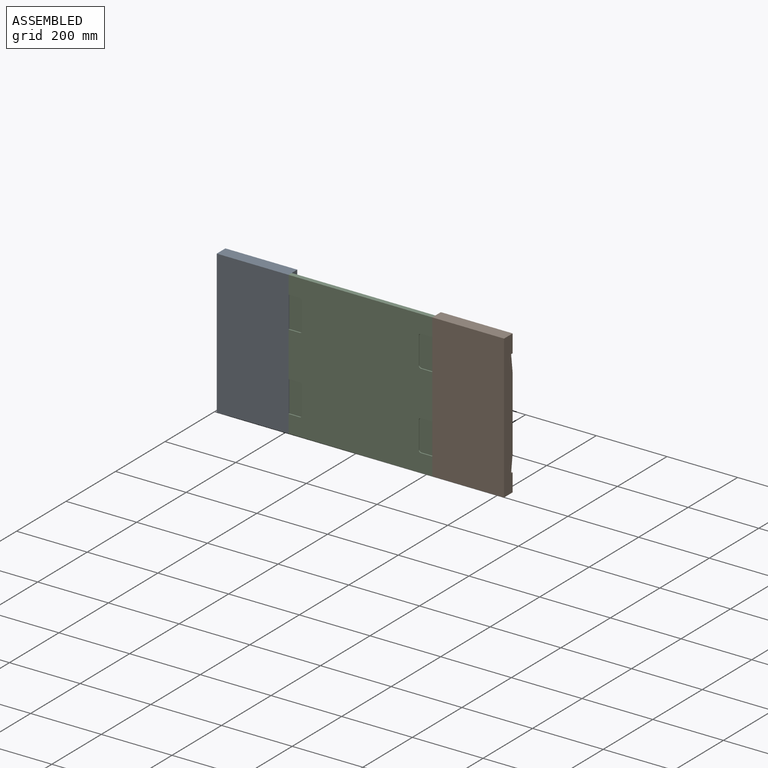
[diagram: assembled view]
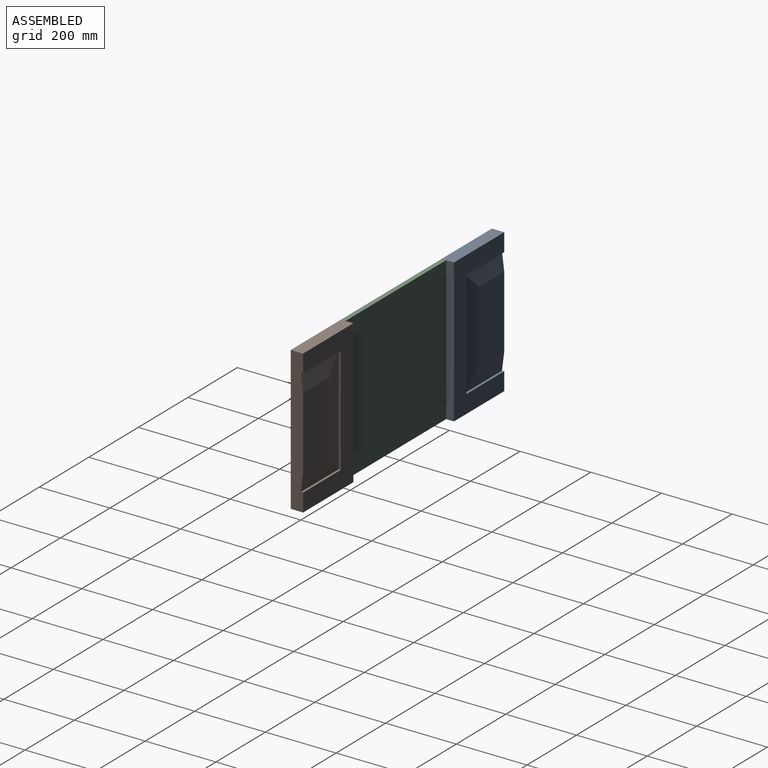
[diagram: assembled view, second angle]
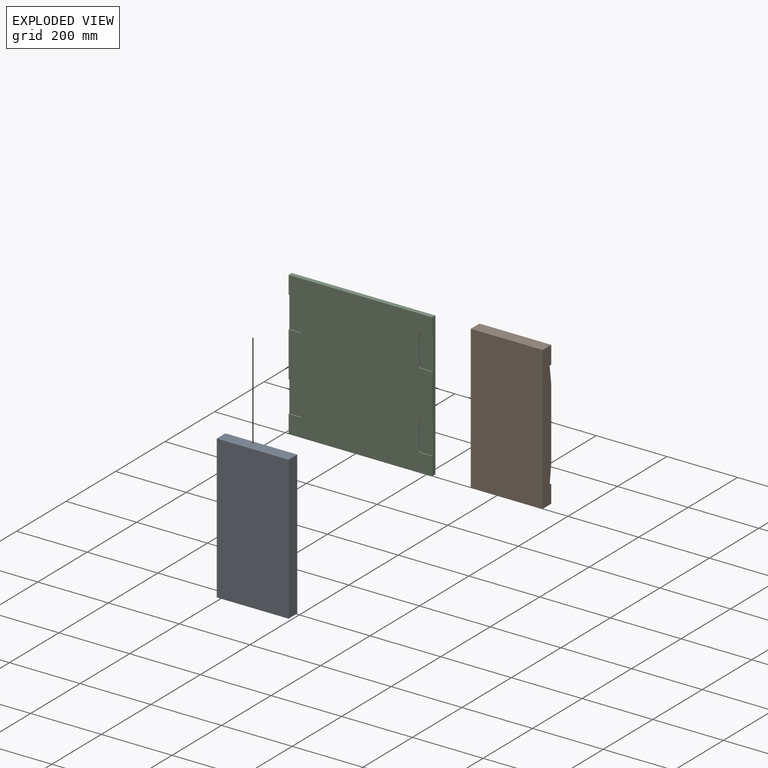
[diagram: exploded view]
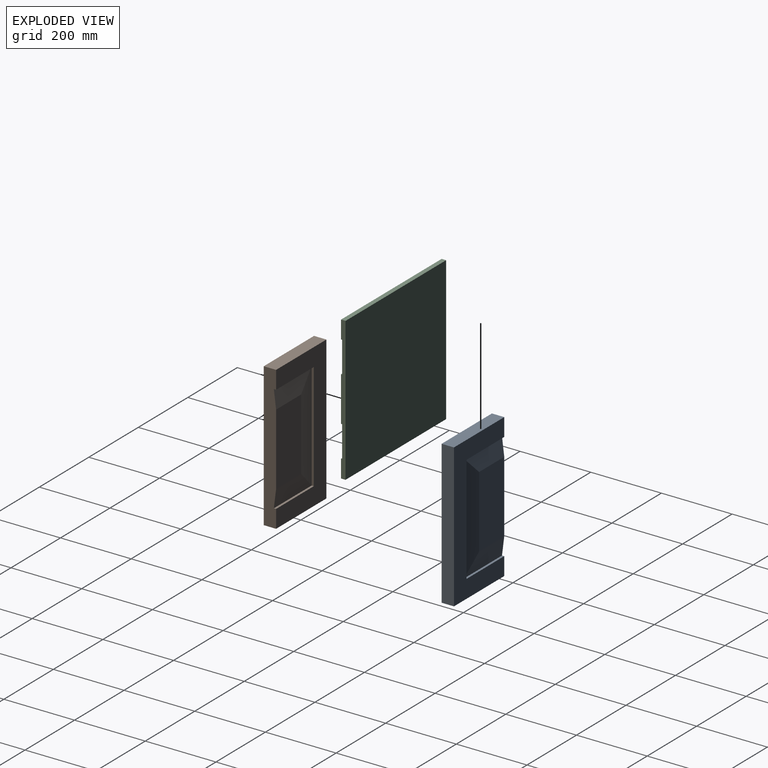
[diagram: exploded view, second angle]
ASSEMBLY  parts=3 mates=2
PART A: 13 faces, bbox 203.2x34.9x406.4 mm
  f0: plane 203.2x101.6mm, normal (0,-1,0), area 20645.1mm2, adj f7,f8,f11,f12
  f1: plane 406.4x203.2mm, normal (0,-1,0), area 36129mm2, adj f2,f3,f5,f6,f9,f10,f12
  f2: plane 203.2x34.93mm, normal (0,0,1), area 7096.8mm2, adj f1,f4,f9,f12
  f3: plane 203.2x34.93mm, normal (0,0,-1), area 7096.8mm2, adj f1,f4,f9,f12
  f4: plane 406.4x203.2mm, normal (0,1,0), area 82580.5mm2, adj f2,f3,f9,f12
  f5: plane 152.4x6.35mm, normal (0,0,-1), area 967.7mm2, adj f1,f7,f10,f12
  f6: plane 152.4x6.35mm, normal (0,0,1), area 967.7mm2, adj f1,f8,f10,f12
  f7: plane 152.4x50.8mm, normal (0,-0.99,0.12), area 6501.8mm2, adj f0,f5,f11,f12
  f8: plane 152.4x50.8mm, normal (0,-0.99,-0.12), area 6501.8mm2, adj f0,f6,f11,f12
  f9: plane 406.4x34.93mm, normal (-1,0,0), area 14193.5mm2, adj f1,f2,f3,f4
  f10: plane 304.8x6.35mm, normal (1,0,0), area 1935.5mm2, adj f1,f5,f6,f11
  f11: plane 304.8x50.8mm, normal (-0.12,-0.99,0), area 13003.6mm2, adj f0,f7,f8,f10
  f12: plane 406.4x34.93mm, normal (1,0,0), area 13870.9mm2, adj f0,f1,f2,f3,f4,f5,f6,f7
PART B: 13 faces, bbox 203.2x34.9x406.4 mm
  f0: plane 406.4x34.93mm, normal (1,0,0), area 14193.5mm2, adj f7,f8,f9,f10
  f1: plane 304.8x6.35mm, normal (-1,0,0), area 1935.5mm2, adj f2,f4,f6,f10
  f2: plane 304.8x50.8mm, normal (0.12,-0.99,0), area 13003.6mm2, adj f1,f3,f5,f11
  f3: plane 152.4x50.8mm, normal (0,-0.99,-0.12), area 6501.8mm2, adj f2,f4,f11,f12
  f4: plane 152.4x6.35mm, normal (0,0,1), area 967.7mm2, adj f1,f3,f10,f12
  f5: plane 152.4x50.8mm, normal (0,-0.99,0.12), area 6501.8mm2, adj f2,f6,f11,f12
  f6: plane 152.4x6.35mm, normal (0,0,-1), area 967.7mm2, adj f1,f5,f10,f12
  f7: plane 406.4x203.2mm, normal (0,1,0), area 82580.5mm2, adj f0,f8,f9,f12
  f8: plane 203.2x34.93mm, normal (0,0,-1), area 7096.8mm2, adj f0,f7,f10,f12
  f9: plane 203.2x34.93mm, normal (0,0,1), area 7096.8mm2, adj f0,f7,f10,f12
  f10: plane 406.4x203.2mm, normal (0,-1,0), area 36129mm2, adj f0,f1,f4,f6,f8,f9,f12
  f11: plane 203.2x101.6mm, normal (0,-1,0), area 20645.1mm2, adj f2,f3,f5,f12
  f12: plane 406.4x34.93mm, normal (-1,0,0), area 13870.9mm2, adj f3,f4,f5,f6,f7,f8,f9,f10
PART C: 30 faces, bbox 406.4x12.7x406.4 mm
  f0: plane 406.4x12.7mm, normal (1,0,0), area 4596.8mm2, adj f1,f2,f4,f5,f18,f22,f23,f24
  f1: plane 406.4x406.4mm, normal (0,-1,0), area 151681.8mm2, adj f0,f2,f3,f4,f6,f7,f8,f9
  f2: plane 406.4x12.7mm, normal (0,0,1), area 5161.3mm2, adj f0,f1,f3,f5
  f3: plane 406.4x12.7mm, normal (-1,0,0), area 4596.8mm2, adj f1,f2,f4,f5,f6,f10,f11,f12
  f4: plane 406.4x12.7mm, normal (0,0,-1), area 5161.3mm2, adj f0,f1,f3,f5
  f5: plane 406.4x406.4mm, normal (0,1,0), area 165161mm2, adj f0,f2,f3,f4
  f6: plane 31.75x3.18mm, normal (0,0,1), area 100.8mm2, adj f1,f3,f7,f11
  f7: cylinder r=6.35mm len=6.35mm, axis (0,-1,0), area 31.7mm2, adj f1,f6,f8,f11
  f8: plane 76.2x3.18mm, normal (-1,0,0), area 241.9mm2, adj f1,f7,f9,f11
  f9: cylinder r=6.35mm len=6.35mm, axis (0,-1,0), area 31.7mm2, adj f1,f8,f10,f11
  f10: plane 31.75x3.18mm, normal (0,0,-1), area 100.8mm2, adj f1,f3,f9,f11
  f11: plane 88.9x38.1mm, normal (0,-1,0), area 3369.8mm2, adj f3,f6,f7,f8,f9,f10
  f12: plane 31.75x3.18mm, normal (0,0,1), area 100.8mm2, adj f1,f3,f13,f17
  f13: cylinder r=6.35mm len=6.35mm, axis (0,-1,0), area 31.7mm2, adj f1,f12,f14,f17
  f14: plane 76.2x3.18mm, normal (-1,0,0), area 241.9mm2, adj f1,f13,f15,f17
  f15: cylinder r=6.35mm len=6.35mm, axis (0,-1,0), area 31.7mm2, adj f1,f14,f16,f17
  f16: plane 31.75x3.18mm, normal (0,0,-1), area 100.8mm2, adj f1,f3,f15,f17
  f17: plane 88.9x38.1mm, normal (0,-1,0), area 3369.8mm2, adj f3,f12,f13,f14,f15,f16
  f18: plane 31.75x3.18mm, normal (0,0,-1), area 100.8mm2, adj f0,f1,f19,f23
  f19: cylinder r=6.35mm len=6.35mm, axis (0,-1,0), area 31.7mm2, adj f1,f18,f20,f23
  f20: plane 76.2x3.18mm, normal (1,0,0), area 241.9mm2, adj f1,f19,f21,f23
  f21: cylinder r=6.35mm len=6.35mm, axis (0,-1,0), area 31.7mm2, adj f1,f20,f22,f23
  f22: plane 31.75x3.18mm, normal (0,0,1), area 100.8mm2, adj f0,f1,f21,f23
  f23: plane 88.9x38.1mm, normal (0,-1,0), area 3369.8mm2, adj f0,f18,f19,f20,f21,f22
  f24: plane 31.75x3.18mm, normal (0,0,-1), area 100.8mm2, adj f0,f1,f25,f29
  f25: cylinder r=6.35mm len=6.35mm, axis (0,-1,0), area 31.7mm2, adj f1,f24,f26,f29
  f26: plane 76.2x3.18mm, normal (1,0,0), area 241.9mm2, adj f1,f25,f27,f29
  f27: cylinder r=6.35mm len=6.35mm, axis (0,-1,0), area 31.7mm2, adj f1,f26,f28,f29
  f28: plane 31.75x3.18mm, normal (0,0,1), area 100.8mm2, adj f0,f1,f27,f29
  f29: plane 88.9x38.1mm, normal (0,-1,0), area 3369.8mm2, adj f0,f24,f25,f26,f27,f28
PLACE A rot(axis=(0,0,-1),180deg) t=(-394.55,-55.53,57.46)mm
PLACE B rot(axis=(0,0,1),180deg) t=(418.25,-55.53,57.46)mm
PLACE C t=(11.85,-42.83,57.46)mm fixed
MATE revolute C.f2 <-> A.f2  axis (0,0,1) through (-191.35,-55.53,260.66)mm
MATE revolute B.f9 <-> C.f2  axis (0,0,1) through (215.05,-55.53,260.66)mm
